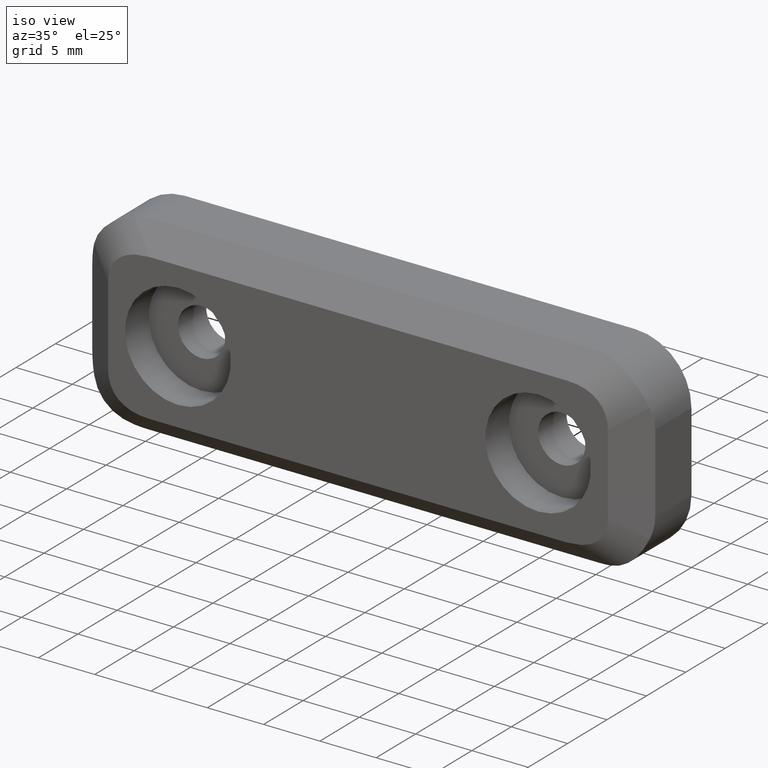
[diagram: clean part render]
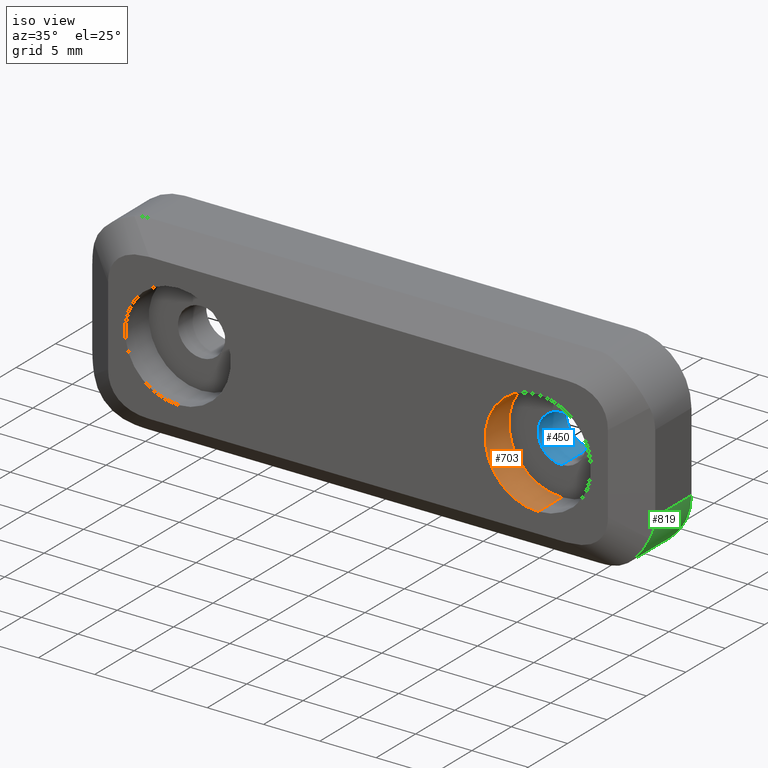
[diagram: same view with three faces highlighted in distinct colors, each labeled with its STEP entity id]
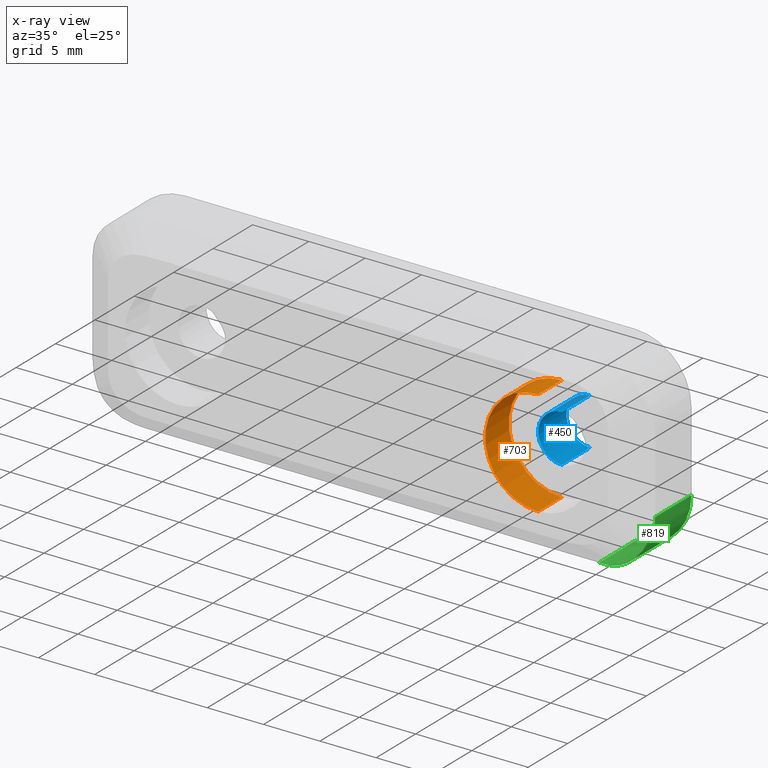
[diagram: x-ray of the same camera — body ghosted, the three highlighted faces saturated]
A machine part, iso view with three faces highlighted in distinct colors.
The next image is the same camera in x-ray (body ghosted, the three faces saturated) — at least one of them is partly hidden behind the body in this view.
Their STEP definitions:

[orange] entity #703 — the highlighted cylindrical surface (partial cylindrical patch) has radius 4.7 mm, axis along (0, -1, 0).
#5 = CIRCLE ( 'NONE', #806, 4.700000000000000200 ) ;
#15 = AXIS2_PLACEMENT_3D ( 'NONE', #284, #40, #255 ) ;
#40 = DIRECTION ( 'NONE',  ( 0.0000000000000000000, -1.000000000000000000, 0.0000000000000000000 ) ) ;
#73 = CIRCLE ( 'NONE', #291, 4.700000000000000200 ) ;
#100 = CARTESIAN_POINT ( 'NONE',  ( 16.00000000000000000, -6.599999999999999600, 4.700000000000000200 ) ) ;
#167 = LINE ( 'NONE', #938, #766 ) ;
#195 = DIRECTION ( 'NONE',  ( 0.0000000000000000000, 0.0000000000000000000, -1.000000000000000000 ) ) ;
#222 = EDGE_CURVE ( 'NONE', #613, #731, #914, .T. ) ;
#228 = ORIENTED_EDGE ( 'NONE', *, *, #367, .F. ) ;
#255 = DIRECTION ( 'NONE',  ( 0.0000000000000000000, 0.0000000000000000000, -1.000000000000000000 ) ) ;
#260 = CARTESIAN_POINT ( 'NONE',  ( 16.00000000000000000, -3.600000000000000100, -4.700000000000000200 ) ) ;
#271 = ORIENTED_EDGE ( 'NONE', *, *, #859, .T. ) ;
#282 = CARTESIAN_POINT ( 'NONE',  ( 16.00000000000000000, -3.600000000000000100, 0.0000000000000000000 ) ) ;
#284 = CARTESIAN_POINT ( 'NONE',  ( 16.00000000000000000, 0.0000000000000000000, 0.0000000000000000000 ) ) ;
#291 = AXIS2_PLACEMENT_3D ( 'NONE', #577, #565, #195 ) ;
#314 = CYLINDRICAL_SURFACE ( 'NONE', #15, 4.700000000000000200 ) ;
#367 = EDGE_CURVE ( 'NONE', #613, #603, #5, .T. ) ;
#420 = DIRECTION ( 'NONE',  ( 0.0000000000000000000, -1.000000000000000000, 0.0000000000000000000 ) ) ;
#426 = DIRECTION ( 'NONE',  ( 0.0000000000000000000, 0.0000000000000000000, -1.000000000000000000 ) ) ;
#427 = EDGE_CURVE ( 'NONE', #603, #688, #167, .T. ) ;
#565 = DIRECTION ( 'NONE',  ( 0.0000000000000000000, -1.000000000000000000, 0.0000000000000000000 ) ) ;
#576 = CARTESIAN_POINT ( 'NONE',  ( 16.00000000000000000, -3.600000000000000100, 4.700000000000000200 ) ) ;
#577 = CARTESIAN_POINT ( 'NONE',  ( 16.00000000000000000, -6.599999999999999600, 0.0000000000000000000 ) ) ;
#584 = CARTESIAN_POINT ( 'NONE',  ( 16.00000000000000000, 0.0000000000000000000, 4.700000000000000200 ) ) ;
#603 = VERTEX_POINT ( 'NONE', #260 ) ;
#613 = VERTEX_POINT ( 'NONE', #576 ) ;
#688 = VERTEX_POINT ( 'NONE', #883 ) ;
#703 = ADVANCED_FACE ( 'NONE', ( #728 ), #314, .F. ) ;
#728 = FACE_OUTER_BOUND ( 'NONE', #1000, .T. ) ;
#731 = VERTEX_POINT ( 'NONE', #100 ) ;
#766 = VECTOR ( 'NONE', #420, 1000.000000000000000 ) ;
#806 = AXIS2_PLACEMENT_3D ( 'NONE', #282, #821, #426 ) ;
#821 = DIRECTION ( 'NONE',  ( 0.0000000000000000000, -1.000000000000000000, 0.0000000000000000000 ) ) ;
#830 = ORIENTED_EDGE ( 'NONE', *, *, #222, .T. ) ;
#849 = ORIENTED_EDGE ( 'NONE', *, *, #427, .F. ) ;
#859 = EDGE_CURVE ( 'NONE', #731, #688, #73, .T. ) ;
#883 = CARTESIAN_POINT ( 'NONE',  ( 16.00000000000000000, -6.599999999999999600, -4.700000000000000200 ) ) ;
#914 = LINE ( 'NONE', #584, #930 ) ;
#930 = VECTOR ( 'NONE', #967, 1000.000000000000000 ) ;
#938 = CARTESIAN_POINT ( 'NONE',  ( 16.00000000000000000, 0.0000000000000000000, -4.700000000000000200 ) ) ;
#967 = DIRECTION ( 'NONE',  ( 0.0000000000000000000, -1.000000000000000000, 0.0000000000000000000 ) ) ;
#1000 = EDGE_LOOP ( 'NONE', ( #228, #830, #271, #849 ) ) ;

[blue] entity #450 — the highlighted cylindrical surface (edge-blend (fillet) strip) has radius 2.1 mm, axis along (0, -1, 0).
#66 = VECTOR ( 'NONE', #373, 1000.000000000000000 ) ;
#77 = VERTEX_POINT ( 'NONE', #922 ) ;
#82 = CARTESIAN_POINT ( 'NONE',  ( 16.00000000000000000, 0.0000000000000000000, 0.0000000000000000000 ) ) ;
#86 = CARTESIAN_POINT ( 'NONE',  ( 16.00000000000000000, 0.0000000000000000000, -2.100000000000025000 ) ) ;
#117 = DIRECTION ( 'NONE',  ( 0.0000000000000000000, -1.000000000000000000, 0.0000000000000000000 ) ) ;
#120 = CYLINDRICAL_SURFACE ( 'NONE', #881, 2.100000000000025000 ) ;
#136 = VERTEX_POINT ( 'NONE', #753 ) ;
#160 = CARTESIAN_POINT ( 'NONE',  ( 16.00000000000000000, 0.0000000000000000000, -2.100000000000025000 ) ) ;
#193 = CARTESIAN_POINT ( 'NONE',  ( 16.00000000000000000, -3.600000000000000100, 0.0000000000000000000 ) ) ;
#215 = CIRCLE ( 'NONE', #649, 2.100000000000025000 ) ;
#275 = LINE ( 'NONE', #507, #66 ) ;
#310 = EDGE_CURVE ( 'NONE', #406, #136, #275, .T. ) ;
#335 = CARTESIAN_POINT ( 'NONE',  ( 16.00000000000000000, 0.0000000000000000000, 0.0000000000000000000 ) ) ;
#373 = DIRECTION ( 'NONE',  ( 0.0000000000000000000, -1.000000000000000000, 0.0000000000000000000 ) ) ;
#380 = VECTOR ( 'NONE', #411, 1000.000000000000000 ) ;
#381 = EDGE_CURVE ( 'NONE', #136, #77, #785, .T. ) ;
#383 = ORIENTED_EDGE ( 'NONE', *, *, #310, .T. ) ;
#392 = EDGE_CURVE ( 'NONE', #578, #77, #655, .T. ) ;
#406 = VERTEX_POINT ( 'NONE', #750 ) ;
#411 = DIRECTION ( 'NONE',  ( 0.0000000000000000000, -1.000000000000000000, 0.0000000000000000000 ) ) ;
#450 = ADVANCED_FACE ( 'NONE', ( #554 ), #120, .F. ) ;
#507 = CARTESIAN_POINT ( 'NONE',  ( 16.00000000000000000, 0.0000000000000000000, 2.100000000000025000 ) ) ;
#516 = AXIS2_PLACEMENT_3D ( 'NONE', #193, #935, #580 ) ;
#536 = ORIENTED_EDGE ( 'NONE', *, *, #392, .F. ) ;
#554 = FACE_OUTER_BOUND ( 'NONE', #611, .T. ) ;
#558 = ORIENTED_EDGE ( 'NONE', *, *, #622, .F. ) ;
#578 = VERTEX_POINT ( 'NONE', #160 ) ;
#580 = DIRECTION ( 'NONE',  ( 0.0000000000000000000, 0.0000000000000000000, -1.000000000000000000 ) ) ;
#586 = ORIENTED_EDGE ( 'NONE', *, *, #381, .T. ) ;
#611 = EDGE_LOOP ( 'NONE', ( #558, #383, #586, #536 ) ) ;
#622 = EDGE_CURVE ( 'NONE', #406, #578, #215, .T. ) ;
#649 = AXIS2_PLACEMENT_3D ( 'NONE', #82, #117, #831 ) ;
#655 = LINE ( 'NONE', #86, #380 ) ;
#750 = CARTESIAN_POINT ( 'NONE',  ( 16.00000000000000000, 0.0000000000000000000, 2.100000000000025000 ) ) ;
#753 = CARTESIAN_POINT ( 'NONE',  ( 16.00000000000000000, -3.600000000000000100, 2.100000000000025000 ) ) ;
#785 = CIRCLE ( 'NONE', #516, 2.100000000000025000 ) ;
#831 = DIRECTION ( 'NONE',  ( 0.0000000000000000000, 0.0000000000000000000, -1.000000000000000000 ) ) ;
#881 = AXIS2_PLACEMENT_3D ( 'NONE', #335, #901, #968 ) ;
#901 = DIRECTION ( 'NONE',  ( 0.0000000000000000000, -1.000000000000000000, 0.0000000000000000000 ) ) ;
#922 = CARTESIAN_POINT ( 'NONE',  ( 16.00000000000000000, -3.600000000000000100, -2.100000000000025000 ) ) ;
#935 = DIRECTION ( 'NONE',  ( 0.0000000000000000000, -1.000000000000000000, 0.0000000000000000000 ) ) ;
#968 = DIRECTION ( 'NONE',  ( 0.0000000000000000000, 0.0000000000000000000, -1.000000000000000000 ) ) ;

[green] entity #819 — the highlighted cylindrical surface (partial cylindrical patch) has radius 5 mm, axis along (0, 1, 0).
#4 = ORIENTED_EDGE ( 'NONE', *, *, #151, .F. ) ;
#8 = CARTESIAN_POINT ( 'NONE',  ( 23.99975946497935600, -5.067390786051115400, -6.507225259083104300 ) ) ;
#11 = CARTESIAN_POINT ( 'NONE',  ( 24.89126041866575900, -4.677671129517263700, -4.700837432451878700 ) ) ;
#12 = CARTESIAN_POINT ( 'NONE',  ( 19.99999999998949800, -1000.000000000000000, -3.499999999999774800 ) ) ;
#14 = CARTESIAN_POINT ( 'NONE',  ( 23.45205393927855700, -5.094829759384985800, -7.122836733820495400 ) ) ;
#29 = DIRECTION ( 'NONE',  ( 0.0000000000000000000, 1.000000000000000000, 0.0000000000000000000 ) ) ;
#45 = CARTESIAN_POINT ( 'NONE',  ( 22.64588629194815500, -5.028169182109274400, -7.747491752721449700 ) ) ;
#56 = CARTESIAN_POINT ( 'NONE',  ( 24.99999999998965400, -4.600000000000089400, -4.105342070638923400 ) ) ;
#65 = ORIENTED_EDGE ( 'NONE', *, *, #926, .F. ) ;
#96 = CARTESIAN_POINT ( 'NONE',  ( 21.15732486817665100, -4.735783809340369500, -8.364216190659449900 ) ) ;
#105 = CARTESIAN_POINT ( 'NONE',  ( 24.53514422780219600, -4.932039837277080200, -5.643430783638015300 ) ) ;
#108 = CARTESIAN_POINT ( 'NONE',  ( 22.46805116632920400, -5.002214370889212200, -7.853152683491577700 ) ) ;
#115 = CARTESIAN_POINT ( 'NONE',  ( 19.99999999998949800, -4.599999999999999600, -8.499999999999769100 ) ) ;
#121 = CARTESIAN_POINT ( 'NONE',  ( 23.87205244155050100, -5.081533563729251100, -6.670148654869957600 ) ) ;
#139 =( BOUNDED_CURVE ( )  B_SPLINE_CURVE ( 3, ( #206, #11, #56, #246 ),
 .UNSPECIFIED., .F., .F. ) 
 B_SPLINE_CURVE_WITH_KNOTS ( ( 4, 4 ),
 ( 5.921957998915421400, 6.283185307179586200 ),
 .UNSPECIFIED. ) 
 CURVE ( )  GEOMETRIC_REPRESENTATION_ITEM ( )  RATIONAL_B_SPLINE_CURVE ( ( 1.000000000000000000, 0.9891557635425529700, 0.9891557635425529700, 1.000000000000000000 ) ) 
 REPRESENTATION_ITEM ( '' )  );
#140 = VERTEX_POINT ( 'NONE', #743 ) ;
#147 = VERTEX_POINT ( 'NONE', #444 ) ;
#151 = EDGE_CURVE ( 'NONE', #783, #140, #440, .T. ) ;
#206 = CARTESIAN_POINT ( 'NONE',  ( 24.67731884921429900, -4.830486536268369800, -5.267113007898930600 ) ) ;
#218 = CARTESIAN_POINT ( 'NONE',  ( 24.99999999998949800, -1000.000000000000000, -3.499999999998495000 ) ) ;
#221 = ORIENTED_EDGE ( 'NONE', *, *, #471, .F. ) ;
#230 = AXIS2_PLACEMENT_3D ( 'NONE', #12, #29, #964 ) ;
#246 = CARTESIAN_POINT ( 'NONE',  ( 24.99999999998949800, -4.599999999999999600, -3.499999999998495000 ) ) ;
#259 = DIRECTION ( 'NONE',  ( 0.0000000000000000000, 1.000000000000000000, 0.0000000000000000000 ) ) ;
#294 = CYLINDRICAL_SURFACE ( 'NONE', #230, 5.000000000000000000 ) ;
#321 = CARTESIAN_POINT ( 'NONE',  ( 23.14542361836563700, -5.080936582071050400, -7.392034514317908000 ) ) ;
#341 = CARTESIAN_POINT ( 'NONE',  ( 19.99999999998949800, 0.0000000000000000000, -8.499999999999769100 ) ) ;
#365 = DIRECTION ( 'NONE',  ( 0.0000000000000000000, 1.000000000000000000, 0.0000000000000000000 ) ) ;
#382 = ORIENTED_EDGE ( 'NONE', *, *, #986, .F. ) ;
#393 = DIRECTION ( 'NONE',  ( 0.0000000000000000000, 0.0000000000000000000, 1.000000000000000000 ) ) ;
#396 = DIRECTION ( 'NONE',  ( -0.0000000000000000000, -1.000000000000000000, -0.0000000000000000000 ) ) ;
#416 = B_SPLINE_CURVE_WITH_KNOTS ( 'NONE', 3,
 ( #726, #105, #648, #8, #121, #825, #14, #321, #660, #45, #108, #713, #422, #885 ),
 .UNSPECIFIED., .F., .F.,
 ( 4, 2, 2, 2, 2, 2, 4 ),
 ( 0.0000000000000000000, 0.001244285988282026700, 0.001866428982423043100, 0.002488571976564059800, 0.003110714970705076300, 0.003732857964846092800, 0.004977143953128123100 ),
 .UNSPECIFIED. ) ;
#422 = CARTESIAN_POINT ( 'NONE',  ( 21.55003786816939700, -4.829220552926047500, -8.270779447073765700 ) ) ;
#438 = VERTEX_POINT ( 'NONE', #799 ) ;
#440 = LINE ( 'NONE', #218, #955 ) ;
#444 = CARTESIAN_POINT ( 'NONE',  ( 21.15732486817665100, -4.735783809340369500, -8.364216190659449900 ) ) ;
#471 = EDGE_CURVE ( 'NONE', #940, #783, #139, .T. ) ;
#493 = AXIS2_PLACEMENT_3D ( 'NONE', #949, #365, #393 ) ;
#494 = ORIENTED_EDGE ( 'NONE', *, *, #585, .F. ) ;
#585 = EDGE_CURVE ( 'NONE', #140, #845, #636, .T. ) ;
#623 = VECTOR ( 'NONE', #396, 1000.000000000000000 ) ;
#636 = CIRCLE ( 'NONE', #493, 5.000000000000000000 ) ;
#648 = CARTESIAN_POINT ( 'NONE',  ( 24.34675513785349200, -5.003603934309655400, -6.004323844479990200 ) ) ;
#660 = CARTESIAN_POINT ( 'NONE',  ( 22.98422797474054500, -5.067433449815775100, -7.516999359487729600 ) ) ;
#661 = EDGE_LOOP ( 'NONE', ( #382, #65, #494, #4, #221, #700 ) ) ;
#683 = CARTESIAN_POINT ( 'NONE',  ( 20.39019313328080000, -4.600000000000062700, -8.499999999999774400 ) ) ;
#700 = ORIENTED_EDGE ( 'NONE', *, *, #707, .T. ) ;
#705 =( BOUNDED_CURVE ( )  B_SPLINE_CURVE ( 3, ( #115, #683, #913, #96 ),
 .UNSPECIFIED., .F., .T. ) 
 B_SPLINE_CURVE_WITH_KNOTS ( ( 4, 4 ),
 ( 0.0000000000000000000, 0.2335832819024628900 ),
 .UNSPECIFIED. ) 
 CURVE ( )  GEOMETRIC_REPRESENTATION_ITEM ( )  RATIONAL_B_SPLINE_CURVE ( ( 1.000000000000000000, 0.9954584034475548700, 0.9954584034475548700, 1.000000000000000000 ) ) 
 REPRESENTATION_ITEM ( '' )  );
#707 = EDGE_CURVE ( 'NONE', #940, #147, #416, .T. ) ;
#713 = CARTESIAN_POINT ( 'NONE',  ( 21.92648594499091500, -4.910103916622611900, -8.131793527950105000 ) ) ;
#722 = CARTESIAN_POINT ( 'NONE',  ( 19.99999999998949800, -1000.000000000000000, -8.499999999999769100 ) ) ;
#726 = CARTESIAN_POINT ( 'NONE',  ( 24.67731884921429900, -4.830486536268369800, -5.267113007898930600 ) ) ;
#743 = CARTESIAN_POINT ( 'NONE',  ( 24.99999999998949800, 0.0000000000000000000, -3.499999999998495000 ) ) ;
#783 = VERTEX_POINT ( 'NONE', #876 ) ;
#799 = CARTESIAN_POINT ( 'NONE',  ( 19.99999999998949800, -4.599999999999999600, -8.499999999999769100 ) ) ;
#819 = ADVANCED_FACE ( 'NONE', ( #906 ), #294, .T. ) ;
#825 = CARTESIAN_POINT ( 'NONE',  ( 23.59748993876430500, -5.095228166797019400, -6.978605862207766500 ) ) ;
#835 = LINE ( 'NONE', #722, #623 ) ;
#845 = VERTEX_POINT ( 'NONE', #341 ) ;
#876 = CARTESIAN_POINT ( 'NONE',  ( 24.99999999998949800, -4.599999999999999600, -3.499999999998495000 ) ) ;
#885 = CARTESIAN_POINT ( 'NONE',  ( 21.15732486817665100, -4.735783809340369500, -8.364216190659449900 ) ) ;
#898 = CARTESIAN_POINT ( 'NONE',  ( 24.67731884921429900, -4.830486536268369800, -5.267113007898930600 ) ) ;
#906 = FACE_OUTER_BOUND ( 'NONE', #661, .T. ) ;
#913 = CARTESIAN_POINT ( 'NONE',  ( 20.77772811688868500, -4.645467766029622000, -8.454532233970214300 ) ) ;
#926 = EDGE_CURVE ( 'NONE', #845, #438, #835, .T. ) ;
#940 = VERTEX_POINT ( 'NONE', #898 ) ;
#949 = CARTESIAN_POINT ( 'NONE',  ( 19.99999999998949800, 0.0000000000000000000, -3.499999999999774800 ) ) ;
#955 = VECTOR ( 'NONE', #259, 1000.000000000000000 ) ;
#964 = DIRECTION ( 'NONE',  ( 0.0000000000000000000, 0.0000000000000000000, 1.000000000000000000 ) ) ;
#986 = EDGE_CURVE ( 'NONE', #438, #147, #705, .T. ) ;